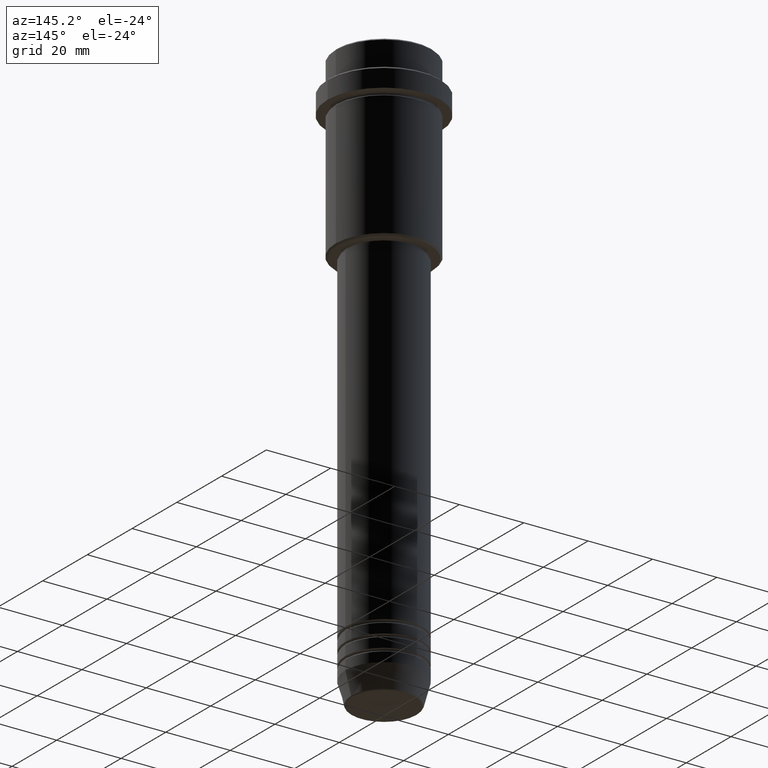
[diagram: clean part render]
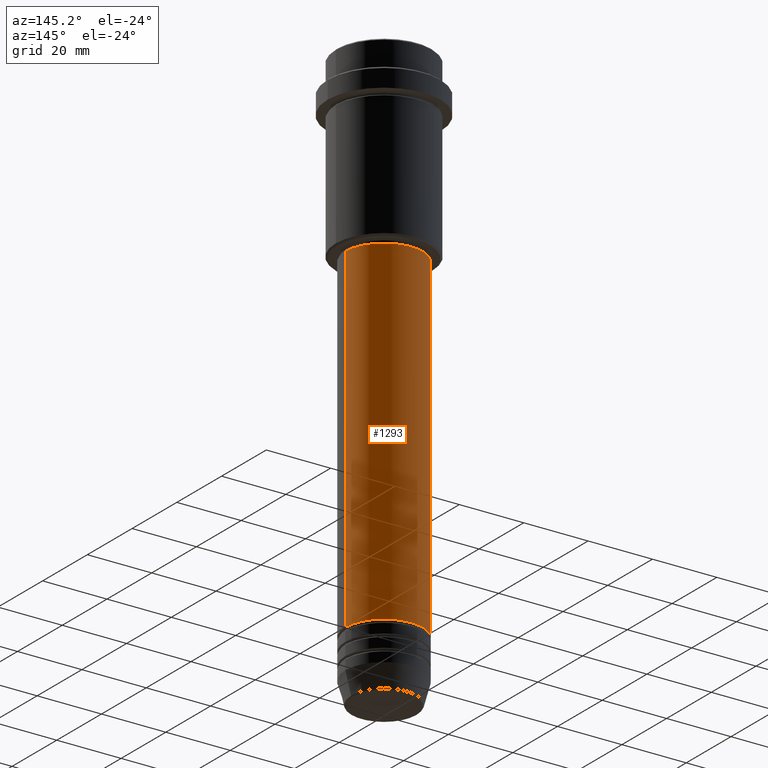
[diagram: same view with one face highlighted and labeled with its STEP entity id]
A machine part, auxiliary view. The second image highlights one B-rep face of the part: STEP entity #1293.
In plain terms, the highlighted cylindrical surface (partial cylindrical patch) has radius 12 mm, axis along (-0, -0, 1).
Its self-contained STEP definition (entity closure, byte-faithful):
#13 = CARTESIAN_POINT ( 'NONE',  ( 12.00000000000000000, 0.000000000000000000, -160.9999999999998579 ) ) ;
#40 = LINE ( 'NONE', #359, #442 ) ;
#176 = AXIS2_PLACEMENT_3D ( 'NONE', #1340, #250, #1233 ) ;
#184 = VERTEX_POINT ( 'NONE', #1151 ) ;
#233 = DIRECTION ( 'NONE',  ( -0.000000000000000000, -0.000000000000000000, 1.000000000000000000 ) ) ;
#240 = CARTESIAN_POINT ( 'NONE',  ( -11.99999999999999822, 1.469576158976823750E-15, -55.99999999999999289 ) ) ;
#250 = DIRECTION ( 'NONE',  ( -0.000000000000000000, -0.000000000000000000, 1.000000000000000000 ) ) ;
#260 = CYLINDRICAL_SURFACE ( 'NONE', #719, 12.00000000000000000 ) ;
#332 = CIRCLE ( 'NONE', #176, 11.99999999999999822 ) ;
#356 = DIRECTION ( 'NONE',  ( 1.000000000000000000, 0.000000000000000000, 0.000000000000000000 ) ) ;
#359 = CARTESIAN_POINT ( 'NONE',  ( 12.00000000000000000, 0.000000000000000000, 0.000000000000000000 ) ) ;
#442 = VECTOR ( 'NONE', #474, 1000.000000000000000 ) ;
#472 = ORIENTED_EDGE ( 'NONE', *, *, #1372, .T. ) ;
#474 = DIRECTION ( 'NONE',  ( -0.000000000000000000, -0.000000000000000000, 1.000000000000000000 ) ) ;
#530 = CARTESIAN_POINT ( 'NONE',  ( 11.99999999999999822, 0.000000000000000000, -55.99999999999999289 ) ) ;
#554 = EDGE_CURVE ( 'NONE', #1200, #1400, #40, .T. ) ;
#564 = CARTESIAN_POINT ( 'NONE',  ( 0.000000000000000000, 0.000000000000000000, 0.000000000000000000 ) ) ;
#566 = EDGE_CURVE ( 'NONE', #1400, #883, #332, .T. ) ;
#719 = AXIS2_PLACEMENT_3D ( 'NONE', #564, #1031, #356 ) ;
#802 = LINE ( 'NONE', #1336, #1049 ) ;
#803 = CIRCLE ( 'NONE', #891, 12.00000000000000000 ) ;
#808 = FACE_OUTER_BOUND ( 'NONE', #830, .T. ) ;
#824 = ORIENTED_EDGE ( 'NONE', *, *, #1248, .T. ) ;
#826 = ORIENTED_EDGE ( 'NONE', *, *, #566, .F. ) ;
#830 = EDGE_LOOP ( 'NONE', ( #824, #472, #826, #958 ) ) ;
#883 = VERTEX_POINT ( 'NONE', #240 ) ;
#891 = AXIS2_PLACEMENT_3D ( 'NONE', #1110, #1134, #1344 ) ;
#958 = ORIENTED_EDGE ( 'NONE', *, *, #554, .F. ) ;
#1031 = DIRECTION ( 'NONE',  ( -0.000000000000000000, -0.000000000000000000, 1.000000000000000000 ) ) ;
#1049 = VECTOR ( 'NONE', #233, 1000.000000000000000 ) ;
#1110 = CARTESIAN_POINT ( 'NONE',  ( 0.000000000000000000, 0.000000000000000000, -160.9999999999998579 ) ) ;
#1134 = DIRECTION ( 'NONE',  ( -0.000000000000000000, -0.000000000000000000, 1.000000000000000000 ) ) ;
#1151 = CARTESIAN_POINT ( 'NONE',  ( -12.00000000000000000, 1.469576158976823947E-15, -160.9999999999998579 ) ) ;
#1200 = VERTEX_POINT ( 'NONE', #13 ) ;
#1233 = DIRECTION ( 'NONE',  ( 1.000000000000000000, 0.000000000000000000, 0.000000000000000000 ) ) ;
#1248 = EDGE_CURVE ( 'NONE', #1200, #184, #803, .T. ) ;
#1293 = ADVANCED_FACE ( 'NONE', ( #808 ), #260, .T. ) ;
#1336 = CARTESIAN_POINT ( 'NONE',  ( -12.00000000000000000, 1.469576158976823947E-15, 0.000000000000000000 ) ) ;
#1340 = CARTESIAN_POINT ( 'NONE',  ( 0.000000000000000000, 0.000000000000000000, -55.99999999999999289 ) ) ;
#1344 = DIRECTION ( 'NONE',  ( 1.000000000000000000, 0.000000000000000000, 0.000000000000000000 ) ) ;
#1372 = EDGE_CURVE ( 'NONE', #184, #883, #802, .T. ) ;
#1400 = VERTEX_POINT ( 'NONE', #530 ) ;